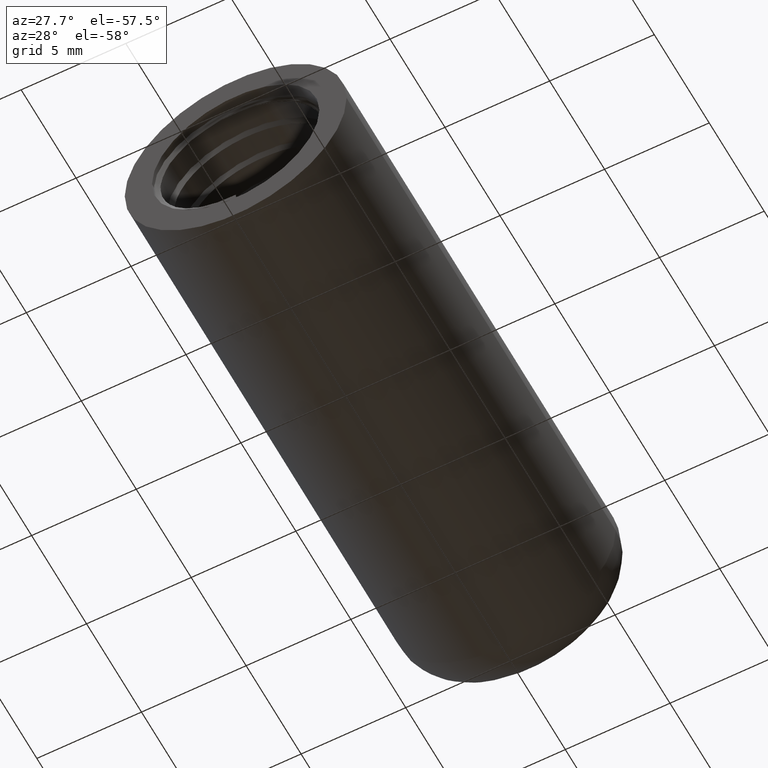
[diagram: clean part render]
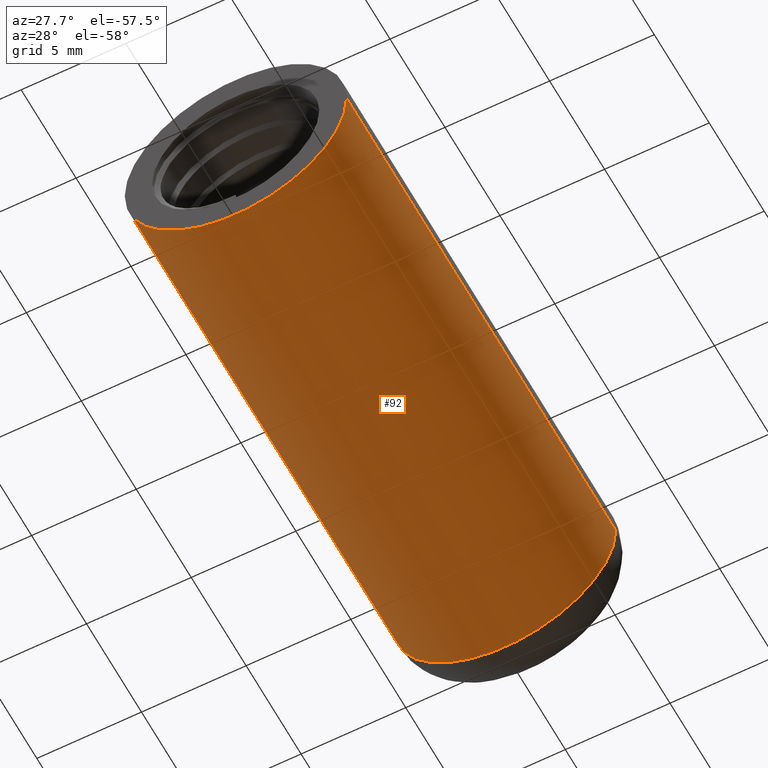
[diagram: same view with one face highlighted and labeled with its STEP entity id]
A machine part, auxiliary view. The second image highlights one B-rep face of the part: STEP entity #92.
In plain terms, the highlighted cylindrical surface (partial cylindrical patch) has radius 5.3 mm, axis along (-0, 1, 0).
Its self-contained STEP definition (entity closure, byte-faithful):
#92=ADVANCED_FACE('',(#185),#186,.T.);
#185=FACE_OUTER_BOUND('',#2016,.T.);
#186=CYLINDRICAL_SURFACE('',#2017,5.3);
#2016=EDGE_LOOP('',(#2223,#2224,#2225,#2226));
#2017=AXIS2_PLACEMENT_3D('',#2227,#2228,#2229);
#2223=ORIENTED_EDGE('',*,*,#2870,.F.);
#2224=ORIENTED_EDGE('',*,*,#2871,.F.);
#2225=ORIENTED_EDGE('',*,*,#2872,.F.);
#2226=ORIENTED_EDGE('',*,*,#2873,.T.);
#2227=CARTESIAN_POINT('',(0.0,0.0,0.0));
#2228=DIRECTION('',(-0.0,1.0,0.0));
#2229=DIRECTION('',(1.0,0.0,-6.12323399573677E-17));
#2870=EDGE_CURVE('',#3100,#3093,#3101,.T.);
#2871=EDGE_CURVE('',#3102,#3100,#3103,.T.);
#2872=EDGE_CURVE('',#3097,#3102,#3104,.T.);
#2873=EDGE_CURVE('',#3097,#3093,#3105,.T.);
#3093=VERTEX_POINT('',#4299);
#3097=VERTEX_POINT('',#4303);
#3100=VERTEX_POINT('',#4306);
#3101=LINE('',#4307,#4308);
#3102=VERTEX_POINT('',#4309);
#3103=CIRCLE('',#4310,5.3);
#3104=LINE('',#4311,#4312);
#3105=CIRCLE('',#4313,5.3);
#4299=CARTESIAN_POINT('',(5.3,24.5,-3.24531401774049E-16));
#4303=CARTESIAN_POINT('',(-5.3,24.5,-3.24531401774048E-16));
#4306=CARTESIAN_POINT('',(5.3,6.93889390390723E-15,-3.24531401774049E-16));
#4307=CARTESIAN_POINT('',(5.3,0.0,3.24531401774048E-16));
#4308=VECTOR('',#4762,1.0);
#4309=CARTESIAN_POINT('',(-5.3,7.105427357601E-15,-3.24531401774048E-16));
#4310=AXIS2_PLACEMENT_3D('',#4763,#4764,#4765);
#4311=CARTESIAN_POINT('',(-5.3,0.0,-3.24531401774048E-16));
#4312=VECTOR('',#4766,1.0);
#4313=AXIS2_PLACEMENT_3D('',#4767,#4768,#4769);
#4762=DIRECTION('',(-0.0,1.0,-0.0));
#4763=CARTESIAN_POINT('',(0.0,6.93889390390723E-15,0.0));
#4764=DIRECTION('',(0.0,-1.0,0.0));
#4765=DIRECTION('',(1.0,0.0,-6.12323399573677E-17));
#4766=DIRECTION('',(-0.0,-1.0,-0.0));
#4767=CARTESIAN_POINT('',(0.0,24.5,0.0));
#4768=DIRECTION('',(0.0,-1.0,0.0));
#4769=DIRECTION('',(1.0,0.0,-6.12323399573677E-17));